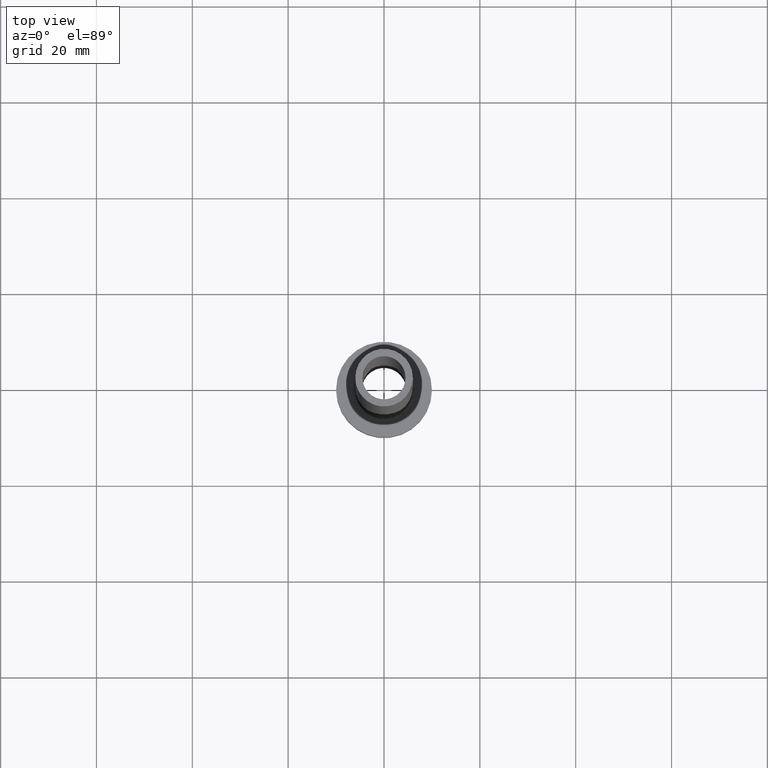
[diagram: clean part render]
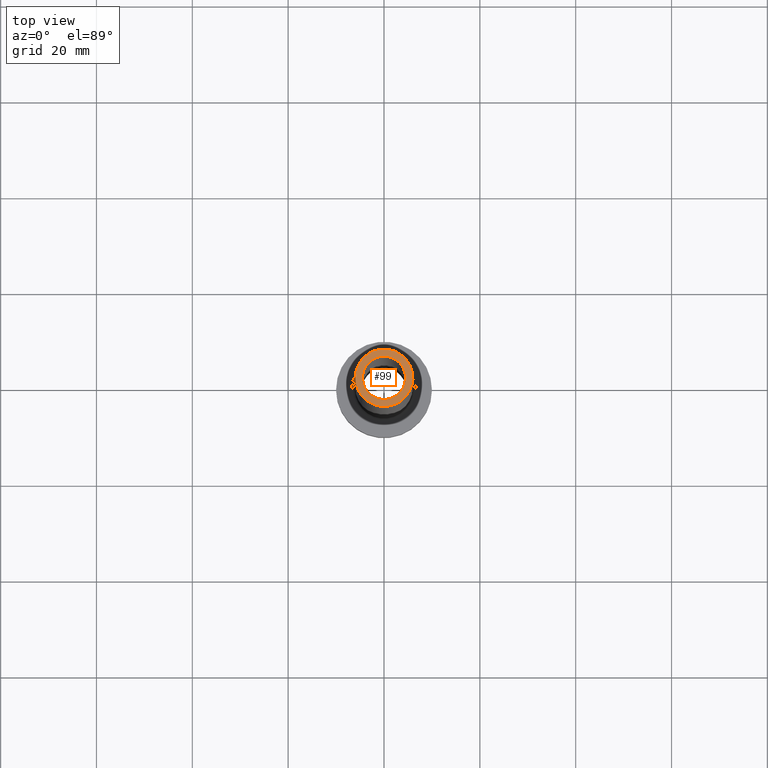
[diagram: same view with one face highlighted and labeled with its STEP entity id]
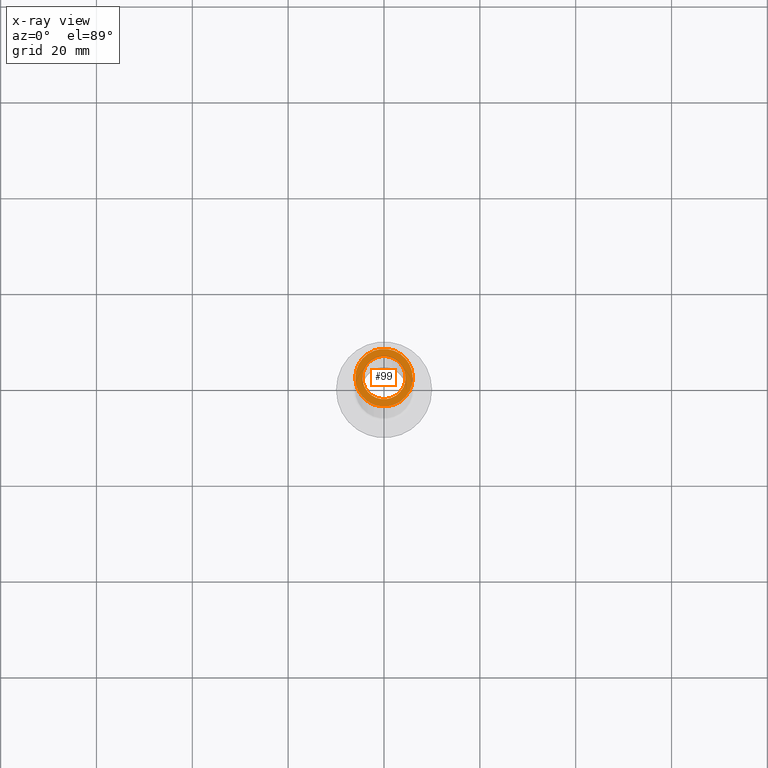
[diagram: x-ray of the same camera — body ghosted, the highlighted face saturated]
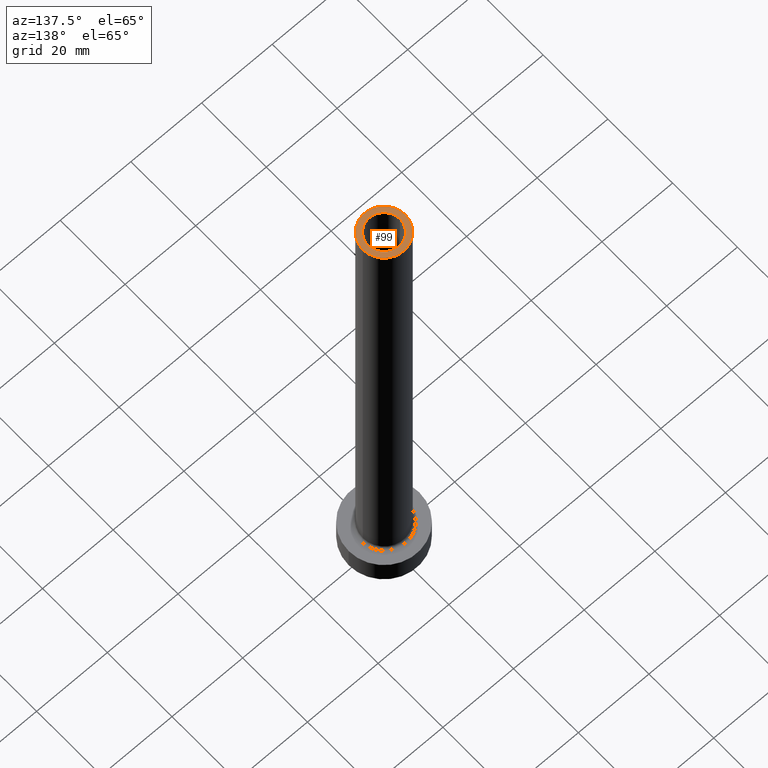
[diagram: same view with one face highlighted and labeled with its STEP entity id]
A machine part, top view. The second image highlights one B-rep face of the part: STEP entity #99.
The next image is the same camera in x-ray: the body ghosted, the highlighted face saturated — about 0% of this face is hidden behind the body in this view.
A second angle (auxiliary view) of the same face is appended — the face is thin or edge-on in the first view.
In plain terms, the highlighted planar face has unit normal (0, 0, 1).
Its self-contained STEP definition (entity closure, byte-faithful):
#2 = CARTESIAN_POINT ( 'NONE',  ( 0.000000000000000000, 0.000000000000000000, 150.0000000000000000 ) ) ;
#12 = CARTESIAN_POINT ( 'NONE',  ( -4.500000000000000000, 0.000000000000000000, 150.0000000000000000 ) ) ;
#17 = CARTESIAN_POINT ( 'NONE',  ( 6.000000000000000888, 7.347880794884120722E-16, 150.0000000000000000 ) ) ;
#48 = AXIS2_PLACEMENT_3D ( 'NONE', #210, #389, #351 ) ;
#55 = CIRCLE ( 'NONE', #377, 4.500000000000000000 ) ;
#67 = FACE_BOUND ( 'NONE', #379, .T. ) ;
#70 = FACE_OUTER_BOUND ( 'NONE', #439, .T. ) ;
#88 = EDGE_CURVE ( 'NONE', #406, #300, #325, .T. ) ;
#90 = ORIENTED_EDGE ( 'NONE', *, *, #350, .F. ) ;
#99 = ADVANCED_FACE ( 'NONE', ( #67, #70 ), #167, .T. ) ;
#117 = CIRCLE ( 'NONE', #344, 4.500000000000000000 ) ;
#130 = CARTESIAN_POINT ( 'NONE',  ( -6.000000000000000888, 0.000000000000000000, 150.0000000000000000 ) ) ;
#132 = AXIS2_PLACEMENT_3D ( 'NONE', #381, #386, #247 ) ;
#143 = EDGE_CURVE ( 'NONE', #278, #240, #117, .T. ) ;
#162 = DIRECTION ( 'NONE',  ( 0.000000000000000000, 0.000000000000000000, 1.000000000000000000 ) ) ;
#167 = PLANE ( 'NONE',  #48 ) ;
#169 = ORIENTED_EDGE ( 'NONE', *, *, #418, .T. ) ;
#192 = CARTESIAN_POINT ( 'NONE',  ( 4.500000000000000000, 5.510910596163087583E-16, 150.0000000000000000 ) ) ;
#210 = CARTESIAN_POINT ( 'NONE',  ( 0.000000000000000000, 0.000000000000000000, 150.0000000000000000 ) ) ;
#236 = DIRECTION ( 'NONE',  ( 1.000000000000000000, 0.000000000000000000, 0.000000000000000000 ) ) ;
#240 = VERTEX_POINT ( 'NONE', #12 ) ;
#247 = DIRECTION ( 'NONE',  ( 1.000000000000000000, 0.000000000000000000, 0.000000000000000000 ) ) ;
#248 = ORIENTED_EDGE ( 'NONE', *, *, #88, .T. ) ;
#278 = VERTEX_POINT ( 'NONE', #192 ) ;
#283 = DIRECTION ( 'NONE',  ( 1.000000000000000000, 0.000000000000000000, 0.000000000000000000 ) ) ;
#300 = VERTEX_POINT ( 'NONE', #130 ) ;
#305 = CARTESIAN_POINT ( 'NONE',  ( 0.000000000000000000, 0.000000000000000000, 150.0000000000000000 ) ) ;
#309 = CIRCLE ( 'NONE', #317, 6.000000000000000888 ) ;
#317 = AXIS2_PLACEMENT_3D ( 'NONE', #305, #449, #236 ) ;
#325 = CIRCLE ( 'NONE', #132, 6.000000000000000888 ) ;
#336 = CARTESIAN_POINT ( 'NONE',  ( 0.000000000000000000, 0.000000000000000000, 150.0000000000000000 ) ) ;
#339 = DIRECTION ( 'NONE',  ( 1.000000000000000000, 0.000000000000000000, 0.000000000000000000 ) ) ;
#344 = AXIS2_PLACEMENT_3D ( 'NONE', #2, #357, #283 ) ;
#350 = EDGE_CURVE ( 'NONE', #240, #278, #55, .T. ) ;
#351 = DIRECTION ( 'NONE',  ( 1.000000000000000000, 0.000000000000000000, -0.000000000000000000 ) ) ;
#357 = DIRECTION ( 'NONE',  ( 0.000000000000000000, 0.000000000000000000, 1.000000000000000000 ) ) ;
#377 = AXIS2_PLACEMENT_3D ( 'NONE', #336, #162, #339 ) ;
#379 = EDGE_LOOP ( 'NONE', ( #90, #442 ) ) ;
#381 = CARTESIAN_POINT ( 'NONE',  ( 0.000000000000000000, 0.000000000000000000, 150.0000000000000000 ) ) ;
#386 = DIRECTION ( 'NONE',  ( 0.000000000000000000, 0.000000000000000000, 1.000000000000000000 ) ) ;
#389 = DIRECTION ( 'NONE',  ( 0.000000000000000000, 0.000000000000000000, 1.000000000000000000 ) ) ;
#406 = VERTEX_POINT ( 'NONE', #17 ) ;
#418 = EDGE_CURVE ( 'NONE', #300, #406, #309, .T. ) ;
#439 = EDGE_LOOP ( 'NONE', ( #169, #248 ) ) ;
#442 = ORIENTED_EDGE ( 'NONE', *, *, #143, .F. ) ;
#449 = DIRECTION ( 'NONE',  ( 0.000000000000000000, 0.000000000000000000, 1.000000000000000000 ) ) ;